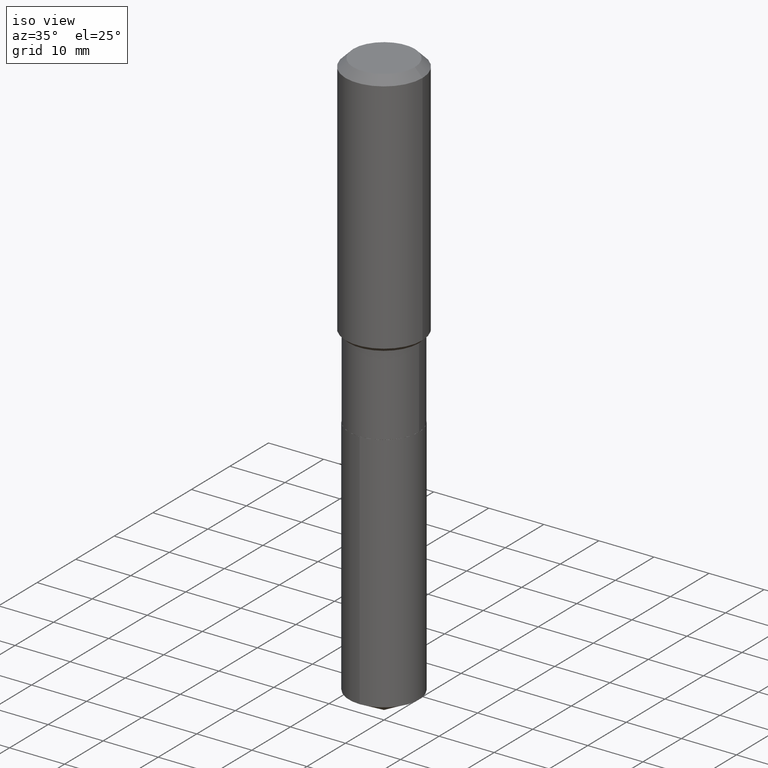
[diagram: clean part render]
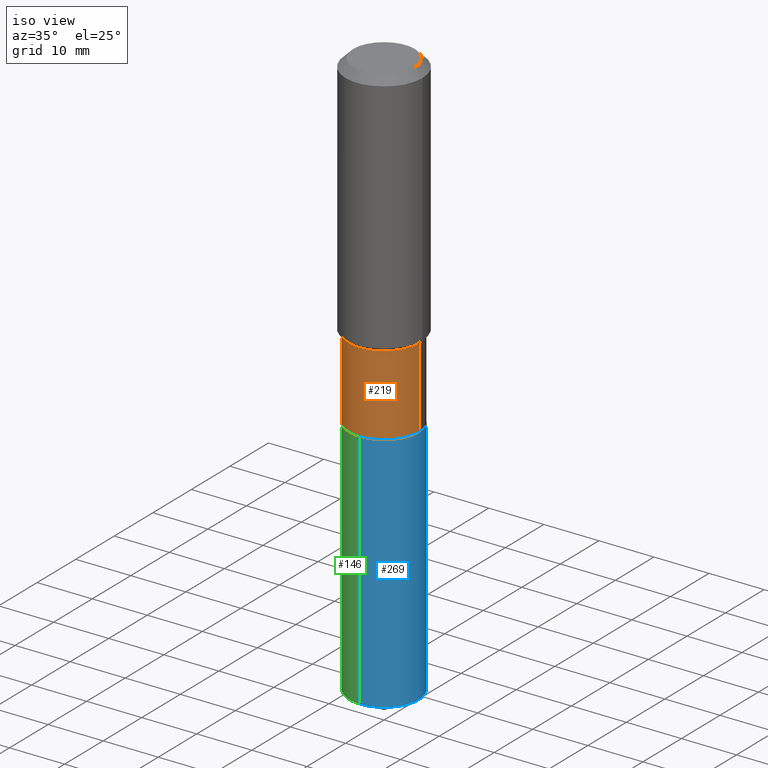
[diagram: same view with three faces highlighted in distinct colors, each labeled with its STEP entity id]
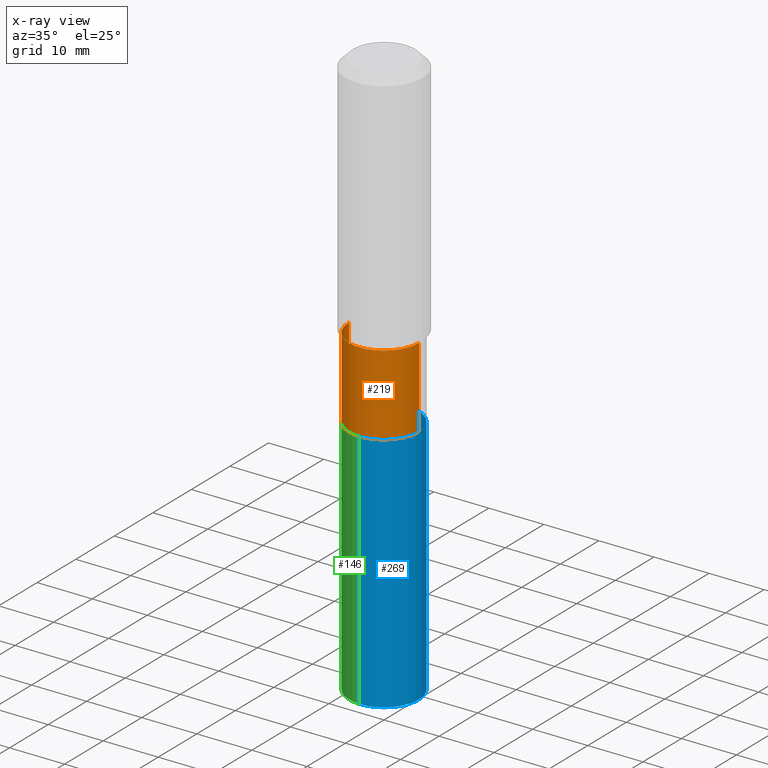
[diagram: x-ray of the same camera — body ghosted, the three highlighted faces saturated]
A machine part, iso view with three faces highlighted in distinct colors.
The next image is the same camera in x-ray (body ghosted, the three faces saturated) — at least one of them is partly hidden behind the body in this view.
Their STEP definitions:

[orange] entity #219 — the highlighted cylindrical surface (partial cylindrical patch) has radius 6.35 mm, axis along (-0, 0, 1).
#3 = DIRECTION ( 'NONE',  ( 1.000000000000000000, -6.982962677686269077E-15, 0.000000000000000000 ) ) ;
#7 = DIRECTION ( 'NONE',  ( -2.445468806185136597E-29, 3.491481338843145583E-15, 1.000000000000000000 ) ) ;
#42 = CARTESIAN_POINT ( 'NONE',  ( -0.2499999999999999167, -5.425347144164564958E-15, -1.775400000000000311 ) ) ;
#77 = AXIS2_PLACEMENT_3D ( 'NONE', #262, #453, #454 ) ;
#86 = LINE ( 'NONE', #420, #355 ) ;
#89 = DIRECTION ( 'NONE',  ( -2.445468806185136877E-29, 3.491481338843145188E-15, 1.000000000000000000 ) ) ;
#104 = DIRECTION ( 'NONE',  ( -2.445468806185136597E-29, 3.491481338843145583E-15, 1.000000000000000000 ) ) ;
#108 = VECTOR ( 'NONE', #89, 39.37007874015748143 ) ;
#134 = CIRCLE ( 'NONE', #77, 0.2500000000000000000 ) ;
#136 = EDGE_CURVE ( 'NONE', #217, #278, #134, .T. ) ;
#148 = CARTESIAN_POINT ( 'NONE',  ( 0.2500000000000000000, -9.950372667569074950E-15, -2.349900000000000322 ) ) ;
#158 = CARTESIAN_POINT ( 'NONE',  ( 0.2499999999999999167, -7.944516638403687674E-15, -1.775400000000000311 ) ) ;
#159 = VERTEX_POINT ( 'NONE', #158 ) ;
#166 = EDGE_CURVE ( 'NONE', #278, #159, #86, .T. ) ;
#186 = AXIS2_PLACEMENT_3D ( 'NONE', #287, #104, #321 ) ;
#217 = VERTEX_POINT ( 'NONE', #401 ) ;
#219 = ADVANCED_FACE ( 'NONE', ( #253 ), #330, .T. ) ;
#223 = CIRCLE ( 'NONE', #432, 0.2499999999999999167 ) ;
#249 = ORIENTED_EDGE ( 'NONE', *, *, #166, .T. ) ;
#252 = ORIENTED_EDGE ( 'NONE', *, *, #484, .F. ) ;
#253 = FACE_OUTER_BOUND ( 'NONE', #383, .T. ) ;
#262 = CARTESIAN_POINT ( 'NONE',  ( 5.746607147654452891E-29, -8.204631998147508272E-15, -2.349900000000000322 ) ) ;
#278 = VERTEX_POINT ( 'NONE', #148 ) ;
#287 = CARTESIAN_POINT ( 'NONE',  ( 0.000000000000000000, 0.000000000000000000, 0.000000000000000000 ) ) ;
#321 = DIRECTION ( 'NONE',  ( 1.000000000000000000, -6.982962677686266711E-15, 4.876176775795935793E-29 ) ) ;
#322 = LINE ( 'NONE', #395, #108 ) ;
#330 = CYLINDRICAL_SURFACE ( 'NONE', #186, 0.2499999999999999722 ) ;
#339 = EDGE_CURVE ( 'NONE', #217, #340, #322, .T. ) ;
#340 = VERTEX_POINT ( 'NONE', #42 ) ;
#355 = VECTOR ( 'NONE', #387, 39.37007874015748143 ) ;
#383 = EDGE_LOOP ( 'NONE', ( #440, #424, #249, #252 ) ) ;
#387 = DIRECTION ( 'NONE',  ( -2.445468806185136877E-29, 3.491481338843145188E-15, 1.000000000000000000 ) ) ;
#388 = CARTESIAN_POINT ( 'NONE',  ( 4.341685318501092485E-29, -6.198775968982121785E-15, -1.775400000000000311 ) ) ;
#395 = CARTESIAN_POINT ( 'NONE',  ( -0.2499999999999999722, 1.776356839400250267E-15, -1.229733772563726305E-29 ) ) ;
#401 = CARTESIAN_POINT ( 'NONE',  ( -0.2500000000000000555, -5.425347144164564170E-15, -2.349900000000000322 ) ) ;
#420 = CARTESIAN_POINT ( 'NONE',  ( 0.2499999999999999722, -1.745740669421566480E-15, 1.219044193948983808E-29 ) ) ;
#424 = ORIENTED_EDGE ( 'NONE', *, *, #136, .T. ) ;
#432 = AXIS2_PLACEMENT_3D ( 'NONE', #388, #7, #3 ) ;
#440 = ORIENTED_EDGE ( 'NONE', *, *, #339, .F. ) ;
#453 = DIRECTION ( 'NONE',  ( -2.445468806185136597E-29, 3.491481338843145583E-15, 1.000000000000000000 ) ) ;
#454 = DIRECTION ( 'NONE',  ( 1.000000000000000000, -6.982962677686266711E-15, 0.000000000000000000 ) ) ;
#484 = EDGE_CURVE ( 'NONE', #340, #159, #223, .T. ) ;

[blue] entity #269 — the highlighted cylindrical surface (partial cylindrical patch) has radius 6.35 mm, axis along (-0, 0, 1).
#8 = DIRECTION ( 'NONE',  ( -6.982962677686265922E-15, -1.000000000000000000, 4.370956789862821150E-15 ) ) ;
#11 = LINE ( 'NONE', #309, #295 ) ;
#24 = ORIENTED_EDGE ( 'NONE', *, *, #378, .T. ) ;
#26 = CIRCLE ( 'NONE', #449, 0.2500000000000000000 ) ;
#31 = CYLINDRICAL_SURFACE ( 'NONE', #160, 0.2500000000000000000 ) ;
#60 = AXIS2_PLACEMENT_3D ( 'NONE', #357, #122, #8 ) ;
#94 = CARTESIAN_POINT ( 'NONE',  ( -1.745740669421508894E-15, -0.2500000000000082157, -2.350399999999999157 ) ) ;
#99 = CARTESIAN_POINT ( 'NONE',  ( 5.747829882057545692E-29, -8.206377738816930564E-15, -2.350400000000000045 ) ) ;
#102 = DIRECTION ( 'NONE',  ( -2.445495345107905207E-29, 3.491443333595239081E-15, 1.000000000000000000 ) ) ;
#119 = CARTESIAN_POINT ( 'NONE',  ( 1.776356839400350256E-15, 0.2499999999999918121, -2.350400000000000933 ) ) ;
#122 = DIRECTION ( 'NONE',  ( -2.445495345107905207E-29, 3.491443333595239081E-15, 1.000000000000000000 ) ) ;
#140 = VERTEX_POINT ( 'NONE', #119 ) ;
#142 = ORIENTED_EDGE ( 'NONE', *, *, #426, .T. ) ;
#143 = DIRECTION ( 'NONE',  ( -6.982962677686265922E-15, -1.000000000000000000, 3.278217592397115862E-15 ) ) ;
#155 = VERTEX_POINT ( 'NONE', #349 ) ;
#160 = AXIS2_PLACEMENT_3D ( 'NONE', #362, #474, #184 ) ;
#184 = DIRECTION ( 'NONE',  ( -6.982962677686265922E-15, -1.000000000000000000, 3.278217592397115862E-15 ) ) ;
#199 = DIRECTION ( 'NONE',  ( -2.445495345107904926E-29, 3.491443333595239081E-15, 1.000000000000000000 ) ) ;
#207 = LINE ( 'NONE', #242, #296 ) ;
#242 = CARTESIAN_POINT ( 'NONE',  ( -1.745740669421508894E-15, -0.2500000000000082157, -2.350399999999999157 ) ) ;
#269 = ADVANCED_FACE ( 'NONE', ( #373 ), #31, .T. ) ;
#274 = CARTESIAN_POINT ( 'NONE',  ( -1.745740669421466492E-15, -0.2500000000000141553, -4.079672642084629430 ) ) ;
#276 = CIRCLE ( 'NONE', #60, 0.2500000000000000000 ) ;
#295 = VECTOR ( 'NONE', #358, 39.37007874015748143 ) ;
#296 = VECTOR ( 'NONE', #199, 39.37007874015748143 ) ;
#309 = CARTESIAN_POINT ( 'NONE',  ( 1.776356839400307657E-15, 0.2499999999999918121, -2.350400000000000933 ) ) ;
#317 = EDGE_LOOP ( 'NONE', ( #24, #142, #369, #450 ) ) ;
#323 = EDGE_CURVE ( 'NONE', #436, #140, #26, .T. ) ;
#349 = CARTESIAN_POINT ( 'NONE',  ( 1.776356839400349467E-15, 0.2499999999999856781, -4.079672642084632095 ) ) ;
#357 = CARTESIAN_POINT ( 'NONE',  ( 9.976758078697957252E-29, -1.424403517699194114E-14, -4.079672642084631207 ) ) ;
#358 = DIRECTION ( 'NONE',  ( -2.445495345107904926E-29, 3.491443333595239081E-15, 1.000000000000000000 ) ) ;
#361 = VERTEX_POINT ( 'NONE', #274 ) ;
#362 = CARTESIAN_POINT ( 'NONE',  ( 5.747829882057545692E-29, -8.206377738816930564E-15, -2.350400000000000045 ) ) ;
#369 = ORIENTED_EDGE ( 'NONE', *, *, #323, .F. ) ;
#373 = FACE_OUTER_BOUND ( 'NONE', #317, .T. ) ;
#378 = EDGE_CURVE ( 'NONE', #361, #155, #276, .T. ) ;
#426 = EDGE_CURVE ( 'NONE', #155, #140, #11, .T. ) ;
#436 = VERTEX_POINT ( 'NONE', #94 ) ;
#449 = AXIS2_PLACEMENT_3D ( 'NONE', #99, #102, #143 ) ;
#450 = ORIENTED_EDGE ( 'NONE', *, *, #464, .F. ) ;
#464 = EDGE_CURVE ( 'NONE', #361, #436, #207, .T. ) ;
#474 = DIRECTION ( 'NONE',  ( -2.445495345107905207E-29, 3.491443333595239081E-15, 1.000000000000000000 ) ) ;

[green] entity #146 — the highlighted cylindrical surface (partial cylindrical patch) has radius 6.35 mm, axis along (-0, 0, 1).
#11 = LINE ( 'NONE', #309, #295 ) ;
#20 = ORIENTED_EDGE ( 'NONE', *, *, #426, .F. ) ;
#23 = EDGE_CURVE ( 'NONE', #155, #361, #398, .T. ) ;
#27 = ORIENTED_EDGE ( 'NONE', *, *, #23, .T. ) ;
#32 = DIRECTION ( 'NONE',  ( -6.982962677686265922E-15, -1.000000000000000000, 4.370956789862821150E-15 ) ) ;
#44 = CARTESIAN_POINT ( 'NONE',  ( 5.747829882057545692E-29, -8.206377738816930564E-15, -2.350400000000000045 ) ) ;
#53 = DIRECTION ( 'NONE',  ( -6.982962677686265922E-15, -1.000000000000000000, 3.278217592397115862E-15 ) ) ;
#90 = CARTESIAN_POINT ( 'NONE',  ( 5.747829882057545692E-29, -8.206377738816930564E-15, -2.350400000000000045 ) ) ;
#94 = CARTESIAN_POINT ( 'NONE',  ( -1.745740669421508894E-15, -0.2500000000000082157, -2.350399999999999157 ) ) ;
#119 = CARTESIAN_POINT ( 'NONE',  ( 1.776356839400350256E-15, 0.2499999999999918121, -2.350400000000000933 ) ) ;
#121 = FACE_OUTER_BOUND ( 'NONE', #137, .T. ) ;
#137 = EDGE_LOOP ( 'NONE', ( #20, #27, #403, #284 ) ) ;
#140 = VERTEX_POINT ( 'NONE', #119 ) ;
#146 = ADVANCED_FACE ( 'NONE', ( #121 ), #271, .T. ) ;
#155 = VERTEX_POINT ( 'NONE', #349 ) ;
#187 = CIRCLE ( 'NONE', #385, 0.2500000000000000000 ) ;
#195 = DIRECTION ( 'NONE',  ( -2.445495345107905207E-29, 3.491443333595239081E-15, 1.000000000000000000 ) ) ;
#198 = CARTESIAN_POINT ( 'NONE',  ( 9.976758078697957252E-29, -1.424403517699194114E-14, -4.079672642084631207 ) ) ;
#199 = DIRECTION ( 'NONE',  ( -2.445495345107904926E-29, 3.491443333595239081E-15, 1.000000000000000000 ) ) ;
#200 = DIRECTION ( 'NONE',  ( -2.445495345107905207E-29, 3.491443333595239081E-15, 1.000000000000000000 ) ) ;
#207 = LINE ( 'NONE', #242, #296 ) ;
#242 = CARTESIAN_POINT ( 'NONE',  ( -1.745740669421508894E-15, -0.2500000000000082157, -2.350399999999999157 ) ) ;
#271 = CYLINDRICAL_SURFACE ( 'NONE', #326, 0.2500000000000000000 ) ;
#274 = CARTESIAN_POINT ( 'NONE',  ( -1.745740669421466492E-15, -0.2500000000000141553, -4.079672642084629430 ) ) ;
#284 = ORIENTED_EDGE ( 'NONE', *, *, #393, .F. ) ;
#294 = AXIS2_PLACEMENT_3D ( 'NONE', #198, #195, #32 ) ;
#295 = VECTOR ( 'NONE', #358, 39.37007874015748143 ) ;
#296 = VECTOR ( 'NONE', #199, 39.37007874015748143 ) ;
#309 = CARTESIAN_POINT ( 'NONE',  ( 1.776356839400307657E-15, 0.2499999999999918121, -2.350400000000000933 ) ) ;
#313 = DIRECTION ( 'NONE',  ( -2.445495345107905207E-29, 3.491443333595239081E-15, 1.000000000000000000 ) ) ;
#326 = AXIS2_PLACEMENT_3D ( 'NONE', #44, #200, #457 ) ;
#349 = CARTESIAN_POINT ( 'NONE',  ( 1.776356839400349467E-15, 0.2499999999999856781, -4.079672642084632095 ) ) ;
#358 = DIRECTION ( 'NONE',  ( -2.445495345107904926E-29, 3.491443333595239081E-15, 1.000000000000000000 ) ) ;
#361 = VERTEX_POINT ( 'NONE', #274 ) ;
#385 = AXIS2_PLACEMENT_3D ( 'NONE', #90, #313, #53 ) ;
#393 = EDGE_CURVE ( 'NONE', #140, #436, #187, .T. ) ;
#398 = CIRCLE ( 'NONE', #294, 0.2500000000000000000 ) ;
#403 = ORIENTED_EDGE ( 'NONE', *, *, #464, .T. ) ;
#426 = EDGE_CURVE ( 'NONE', #155, #140, #11, .T. ) ;
#436 = VERTEX_POINT ( 'NONE', #94 ) ;
#457 = DIRECTION ( 'NONE',  ( -6.982962677686265922E-15, -1.000000000000000000, 3.278217592397115862E-15 ) ) ;
#464 = EDGE_CURVE ( 'NONE', #361, #436, #207, .T. ) ;